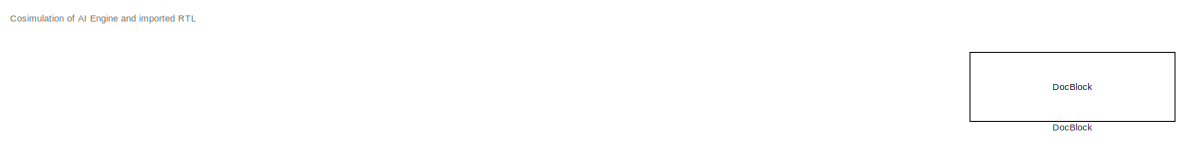
[diagram: root canvas - part 1/2, full width, top band]
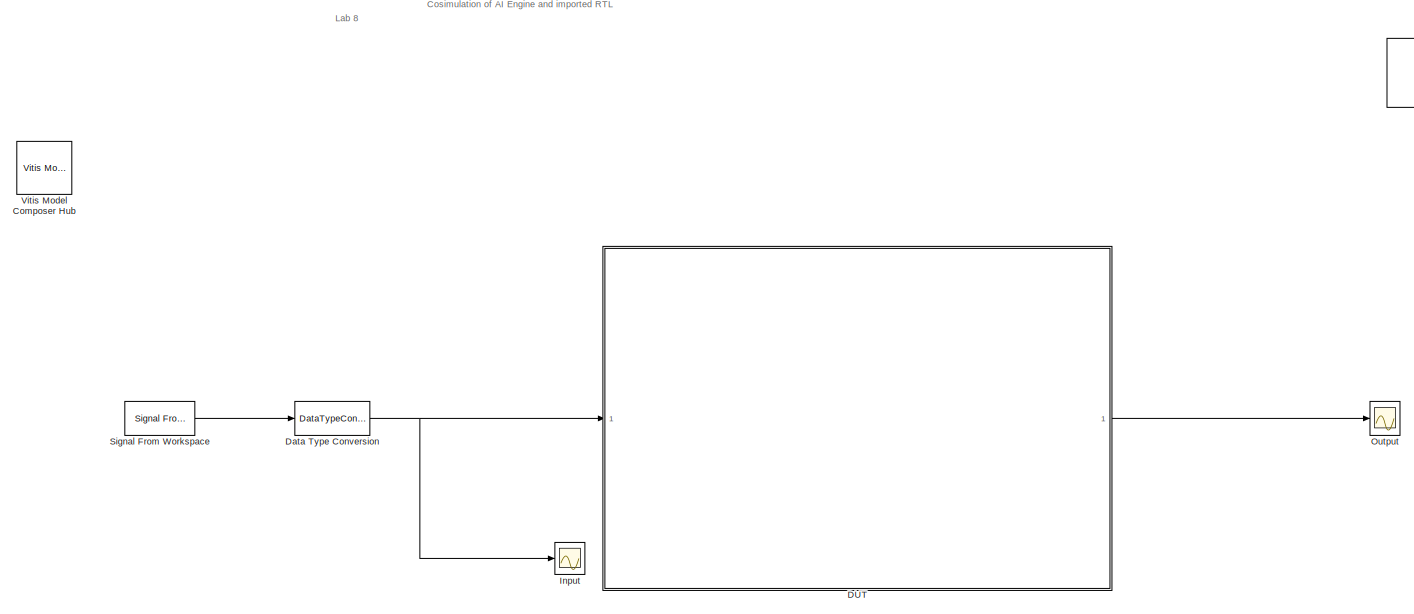
[diagram: root canvas - part 2/2, most of the canvas]
MODEL slx_461055467133
KIND model
CONFIG AbsTol = auto
CONFIG EnableMultiTasking = off
CONFIG FixedStep = auto
CONFIG InitFcn = xlEvaluateHDLBlocks('AIE_RTL_cosim_black_box')\n\n
CONFIG MaxStep = auto
CONFIG MinStep = auto
CONFIG PreLoadFcn = xmcCheckSlxPath(bdroot);\ninput = readcomplexdata('./sw/input.h');\n\n% ii of the HDL black box design is 19. Hence we are running\n% the HDL desgin at 20 times faster than\n% the input sample time. \n\nsample_time = 0.5/20
CONFIG RelTol = 1e-3
CONFIG SampleTimeConstraint = Unconstrained
CONFIG SolverName = VariableStepAuto
CONFIG StartTime = 0.0
CONFIG StopTime = 4000
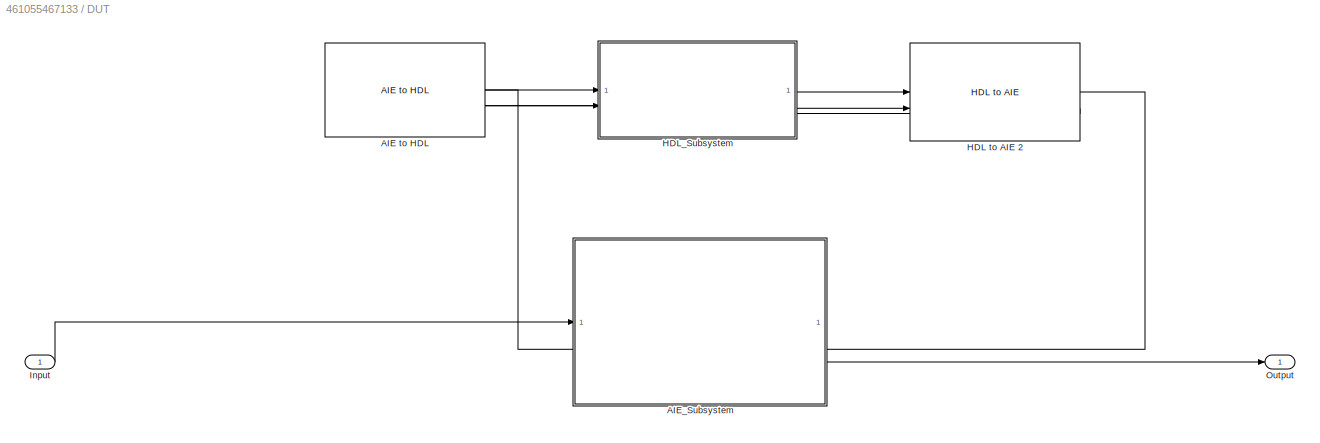
BLOCK [SubSystem] DUT
BLOCK [Reference] DUT/AIE to HDL  REF=aieUtilities/AIE to HDL
  SourceBlock = aieUtilities/AIE to HDL
  SourceType = AIE to HDL
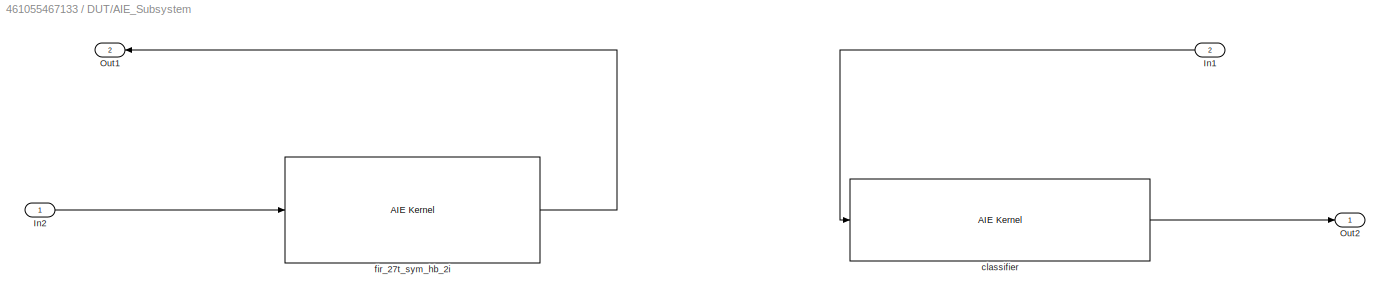
BLOCK [SubSystem] DUT/AIE_Subsystem
  PortSchema = {"entries":[{"content":{"sides":[{"content":{"connectorIds":["Out2","In1"]},"type":"ConnectorPlacement.EquallySpacedRectSide","uuid":"898d8c47-e932-4e65-b4ee-22fcab4c971c"},{"content":{"connectorIds":["In2","Out1"],"side":"RIGHT"},"type":"ConnectorPlacement.EquallySpacedRectSide","uuid":"af23ae14-2da0-4d61-8b36-3a1d0e7ee3d3"},{"content":{"connectorIds":[],"side":"TOP"},"type":"ConnectorPlacement.E...<+255ch>
BLOCK [Inport] DUT/AIE_Subsystem/In1
  NameLocation = top
  Port = 2
BLOCK [Inport] DUT/AIE_Subsystem/In2
BLOCK [Outport] DUT/AIE_Subsystem/Out1
  NameLocation = top
  Port = 2
BLOCK [Outport] DUT/AIE_Subsystem/Out2
BLOCK [Reference] DUT/AIE_Subsystem/classifier  REF=aieBasic/AIE Kernel
  SourceBlock = aieBasic/AIE Kernel
  SourceType = AIE Kernel Function
BLOCK [Reference] DUT/AIE_Subsystem/fir_27t_sym_hb_2i  REF=aieBasic/AIE Kernel
  SourceBlock = aieBasic/AIE Kernel
  SourceType = AIE Kernel Function
BLOCK [Reference] DUT/HDL to AIE 2  REF=aieUtilities/HDL to AIE
  SourceBlock = aieUtilities/HDL to AIE
  SourceType = HDL to AIE
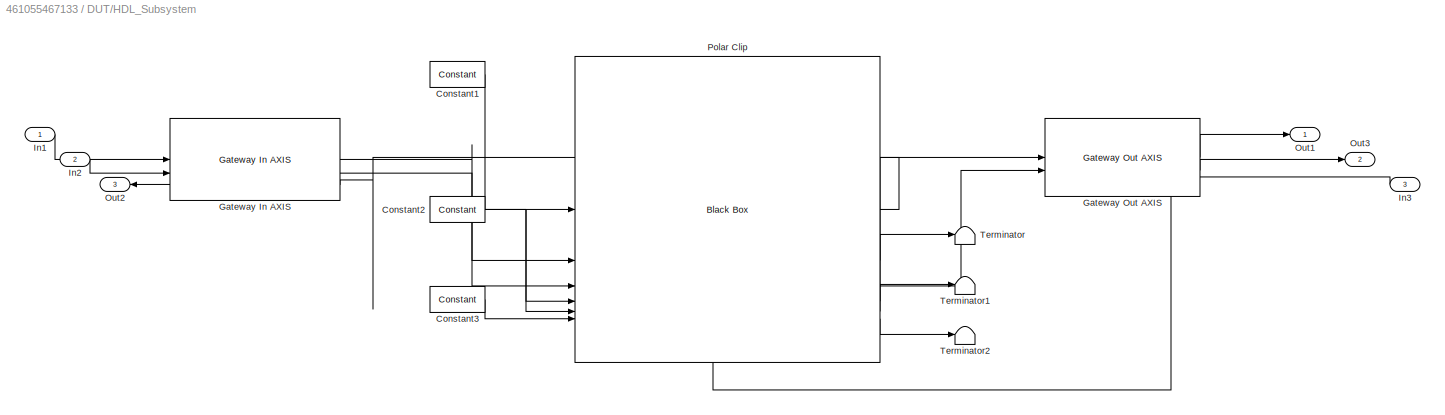
BLOCK [SubSystem] DUT/HDL_Subsystem
  PortSchema = {"entries":[{"content":{"sides":[{"content":{"connectorIds":["In1","In2","Out3"]},"type":"ConnectorPlacement.EquallySpacedRectSide","uuid":"f7d09b9b-9cab-45de-a234-ce17189f1f38"},{"content":{"connectorIds":["Out1","Out2","In3"],"side":"RIGHT"},"type":"ConnectorPlacement.EquallySpacedRectSide","uuid":"963e2550-c982-4a72-83e5-f36d54b36baa"},{"content":{"side":"TOP"},"type":"ConnectorPlacement.Equall...<+248ch>
BLOCK [Reference] DUT/HDL_Subsystem/Constant1  REF=hdlBasic/Constant
  SourceBlock = hdlBasic/Constant
  SourceType = Constant Block Block
BLOCK [Reference] DUT/HDL_Subsystem/Constant2  REF=hdlBasic/Constant
  SourceBlock = hdlBasic/Constant
  SourceType = Constant Block Block
BLOCK [Reference] DUT/HDL_Subsystem/Constant3  REF=hdlBasic/Constant
  SourceBlock = hdlBasic/Constant
  SourceType = Constant Block Block
BLOCK [Reference] DUT/HDL_Subsystem/Gateway In AXIS  REF=hdlUtilities/Gateway In AXIS
  SourceBlock = hdlUtilities/Gateway In AXIS
  SourceType = Gateway In AXIS
BLOCK [Reference] DUT/HDL_Subsystem/Gateway Out AXIS  REF=hdlUtilities/Gateway Out AXIS
  SourceBlock = hdlUtilities/Gateway Out AXIS
  SourceType = Gateway Out AXIS
BLOCK [Inport] DUT/HDL_Subsystem/In1
BLOCK [Inport] DUT/HDL_Subsystem/In2
  Port = 2
BLOCK [Inport] DUT/HDL_Subsystem/In3
  NameLocation = top
  Port = 3
BLOCK [Outport] DUT/HDL_Subsystem/Out1
BLOCK [Outport] DUT/HDL_Subsystem/Out2
  NameLocation = top
  Port = 3
BLOCK [Outport] DUT/HDL_Subsystem/Out3
  Port = 2
BLOCK [Reference] DUT/HDL_Subsystem/Polar Clip  REF=hdlBasic/Black Box
  SourceBlock = hdlBasic/Black Box
  SourceType = Black Box Block
BLOCK [Terminator] DUT/HDL_Subsystem/Terminator
BLOCK [Terminator] DUT/HDL_Subsystem/Terminator1
BLOCK [Terminator] DUT/HDL_Subsystem/Terminator2
BLOCK [Inport] DUT/Input
BLOCK [Outport] DUT/Output
BLOCK [DataTypeConversion] Data Type Conversion
  OutDataTypeStr = int16
  RndMeth = Floor
  SaturateOnIntegerOverflow = off
BLOCK [Reference] DocBlock  REF=simulink/Model-Wide
Utilities/DocBlock
  SourceBlock = simulink/Model-Wide\nUtilities/DocBlock
  SourceType = DocBlock
  UserDataPersistent = on
BLOCK [Scope] Input
  Floating = off
  NumInputPorts = 1
  ScopeSpecificationString = Simulink.scopes.TimeScopeBlockCfg('CurrentConfiguration', extmgr.ConfigurationSet(extmgr.Configuration('Core','General UI',true),extmgr.Configuration('Core','Source UI',true),extmgr.Configuration('Sources','WiredSimulink',true,'DataLoggingVariableName','ScopeData1'),extmgr.Configuration('Visuals','Time Domain',true,'SerializedDisplays',{struct('MinYLimReal','-19654.00000','MaxYLimReal','20506.0000...<+1504ch>
BLOCK [Scope] Output
  Floating = off
  NumInputPorts = 1
  ScopeSpecificationString = Simulink.scopes.TimeScopeBlockCfg('CurrentConfiguration', extmgr.ConfigurationSet(extmgr.Configuration('Core','General UI',true),extmgr.Configuration('Core','Source UI',true),extmgr.Configuration('Sources','WiredSimulink',true),extmgr.Configuration('Visuals','Time Domain',true,'InputProcessing','FrameProcessing','SerializedDisplays',{struct('MinYLimReal','-0.375','MaxYLimReal','3.375','YLabelReal'...<+1644ch>
BLOCK [Reference] Signal From Workspace  REF=dspsrcs4/Signal From
Workspace
  SourceBlock = dspsrcs4/Signal From\nWorkspace
  SourceType = Signal From Workspace
BLOCK [Reference] Vitis Model Composer Hub  REF=vmcUtilities/Vitis Model Composer Hub
  SourceBlock = vmcUtilities/Vitis Model Composer Hub
  SourceType = VMC Hub
  Tag = genX
  UserDataPersistent = on
ANNOTATION (root): Cosimulation of AI Engine and imported RTL
ANNOTATION (root): Lab 8
LINE DUT/AIE to HDL:1 -> DUT/HDL_Subsystem:1
LINE DUT/AIE to HDL:2 -> DUT/HDL_Subsystem:2
LINE DUT/AIE_Subsystem/In1:1 -> DUT/AIE_Subsystem/classifier:1
LINE DUT/AIE_Subsystem/In2:1 -> DUT/AIE_Subsystem/fir_27t_sym_hb_2i:1
LINE DUT/AIE_Subsystem/classifier:1 -> DUT/AIE_Subsystem/Out2:1
LINE DUT/AIE_Subsystem/fir_27t_sym_hb_2i:1 -> DUT/AIE_Subsystem/Out1:1
LINE DUT/AIE_Subsystem:1 -> DUT/Output:1
LINE DUT/AIE_Subsystem:2 -> DUT/AIE to HDL:1
LINE DUT/HDL to AIE 2:1 -> DUT/AIE_Subsystem:2
LINE DUT/HDL to AIE 2:2 -> DUT/HDL_Subsystem:3
LINE DUT/HDL_Subsystem/Constant1:1 -> DUT/HDL_Subsystem/Polar Clip:1
NET DUT/HDL_Subsystem/Constant2:1 -> DUT/HDL_Subsystem/Polar Clip:4, DUT/HDL_Subsystem/Polar Clip:5
LINE DUT/HDL_Subsystem/Constant3:1 -> DUT/HDL_Subsystem/Polar Clip:6
LINE DUT/HDL_Subsystem/Gateway In AXIS:1 -> DUT/HDL_Subsystem/Polar Clip:2
LINE DUT/HDL_Subsystem/Gateway In AXIS:2 -> DUT/HDL_Subsystem/Polar Clip:3
LINE DUT/HDL_Subsystem/Gateway In AXIS:3 -> DUT/HDL_Subsystem/Out2:1
LINE DUT/HDL_Subsystem/Gateway Out AXIS:1 -> DUT/HDL_Subsystem/Out1:1
LINE DUT/HDL_Subsystem/Gateway Out AXIS:2 -> DUT/HDL_Subsystem/Out3:1
LINE DUT/HDL_Subsystem/Gateway Out AXIS:3 -> DUT/HDL_Subsystem/Polar Clip:7
LINE DUT/HDL_Subsystem/In1:1 -> DUT/HDL_Subsystem/Gateway In AXIS:1
LINE DUT/HDL_Subsystem/In2:1 -> DUT/HDL_Subsystem/Gateway In AXIS:2
LINE DUT/HDL_Subsystem/In3:1 -> DUT/HDL_Subsystem/Gateway Out AXIS:3
LINE DUT/HDL_Subsystem/Polar Clip:1 -> DUT/HDL_Subsystem/Gateway In AXIS:3
LINE DUT/HDL_Subsystem/Polar Clip:2 -> DUT/HDL_Subsystem/Gateway Out AXIS:1
LINE DUT/HDL_Subsystem/Polar Clip:3 -> DUT/HDL_Subsystem/Gateway Out AXIS:2
LINE DUT/HDL_Subsystem/Polar Clip:4 -> DUT/HDL_Subsystem/Terminator:1
LINE DUT/HDL_Subsystem/Polar Clip:5 -> DUT/HDL_Subsystem/Terminator1:1
LINE DUT/HDL_Subsystem/Polar Clip:6 -> DUT/HDL_Subsystem/Terminator2:1
LINE DUT/HDL_Subsystem:1 -> DUT/HDL to AIE 2:1
LINE DUT/HDL_Subsystem:2 -> DUT/HDL to AIE 2:2
LINE DUT/HDL_Subsystem:3 -> DUT/AIE to HDL:2
LINE DUT/Input:1 -> DUT/AIE_Subsystem:1
LINE DUT:1 -> Output:1
NET Data Type Conversion:1 -> DUT:1, Input:1
LINE Signal From Workspace:1 -> Data Type Conversion:1
note: NET lines group one-source signal fan-out (src -> all destinations, sorted); 1:1 wires keep LINE
